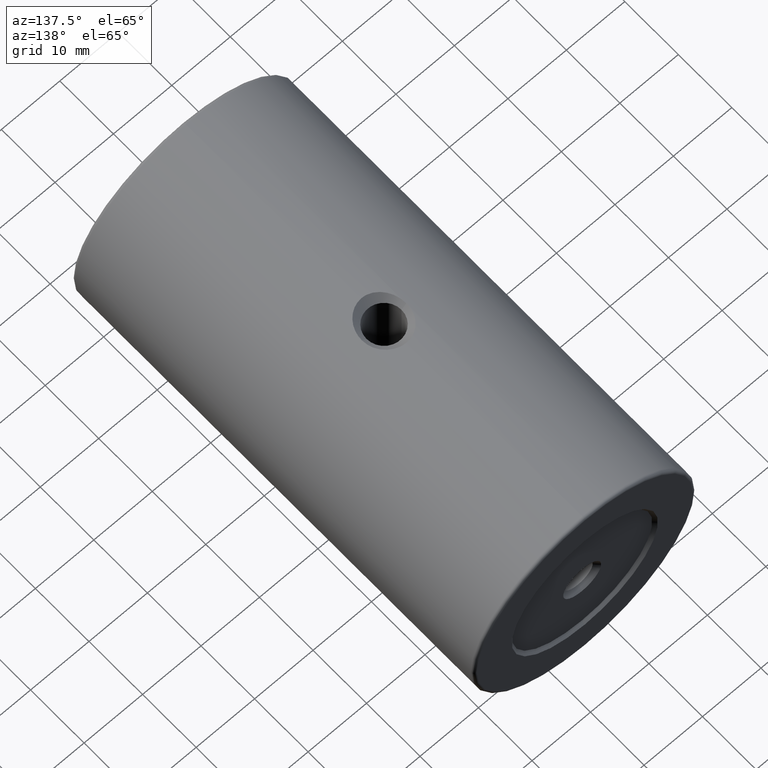
[diagram: clean part render]
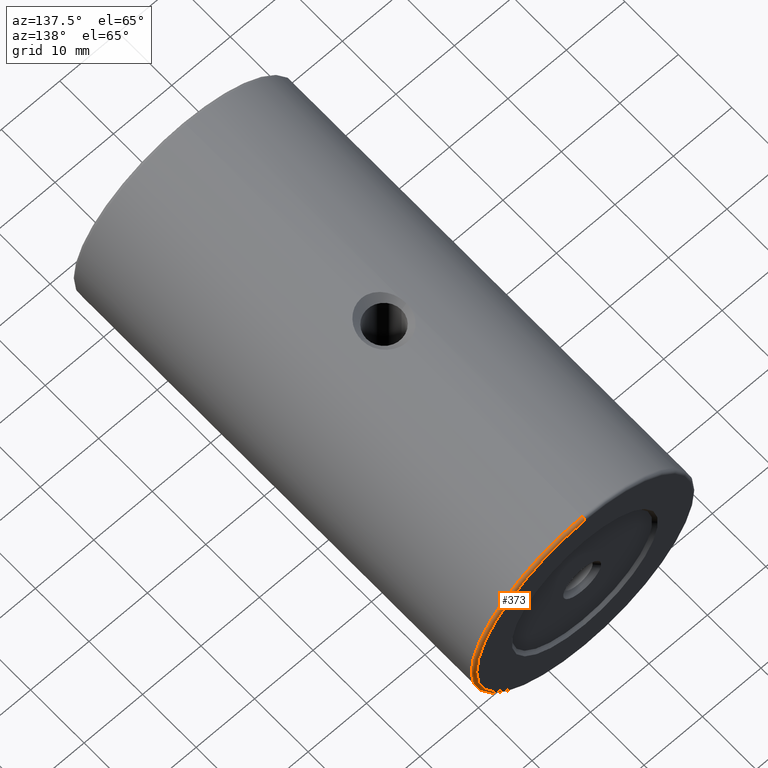
[diagram: same view with one face highlighted and labeled with its STEP entity id]
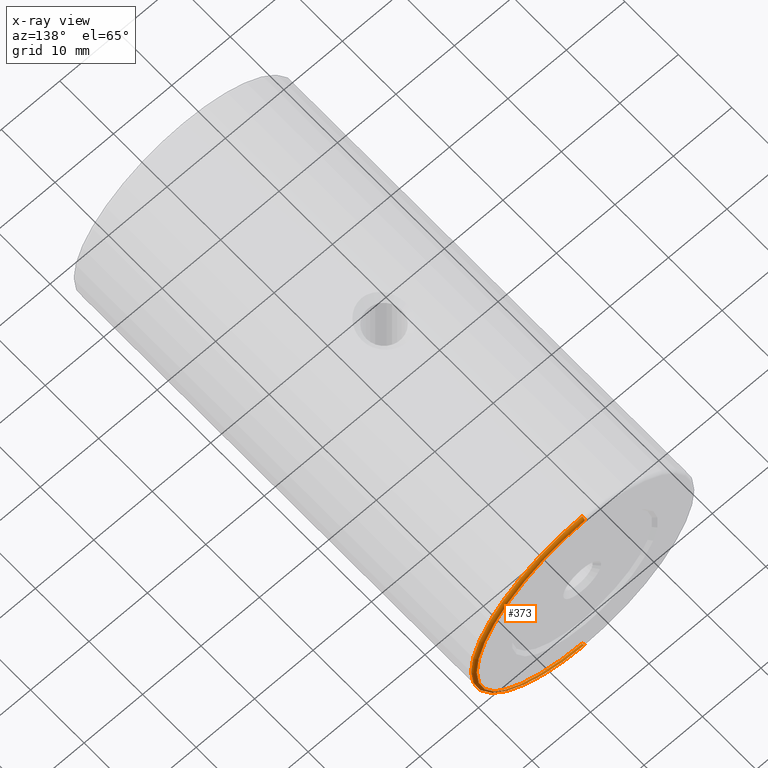
[diagram: x-ray of the same camera — body ghosted, the highlighted face saturated]
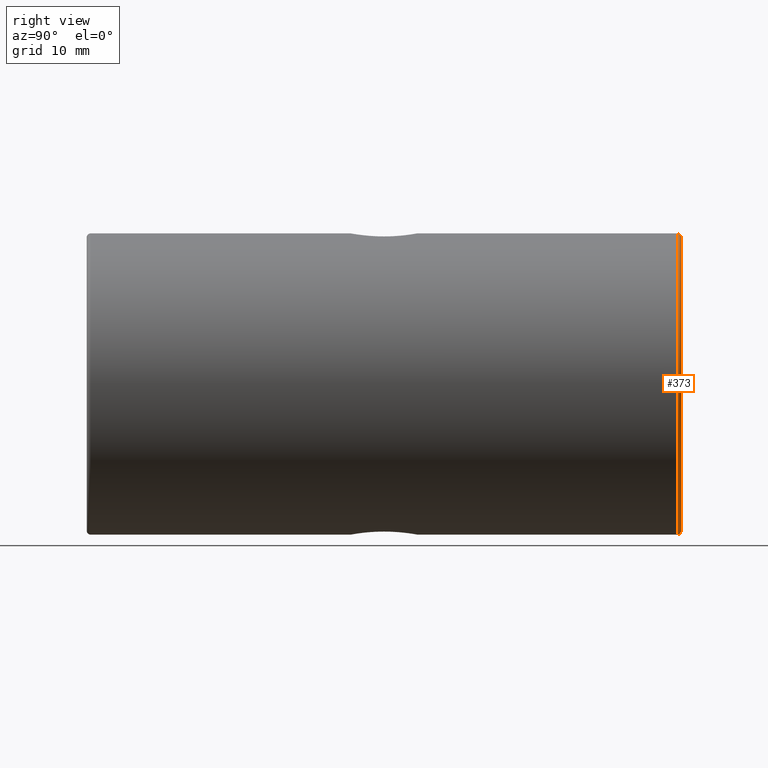
[diagram: same view with one face highlighted and labeled with its STEP entity id]
A machine part, auxiliary view. The second image highlights one B-rep face of the part: STEP entity #373.
The next image is the same camera in x-ray: the body ghosted, the highlighted face saturated — about 0% of this face is hidden behind the body in this view.
A second angle (right view) of the same face is appended — the face is thin or edge-on in the first view.
In plain terms, the highlighted toroidal blend (fillet) surface has major radius 18.5 mm and minor (blend) radius 0.5 mm.
Its self-contained STEP definition (entity closure, byte-faithful):
#5 = AXIS2_PLACEMENT_3D ( 'NONE', #918, #829, #670 ) ;
#17 = FACE_OUTER_BOUND ( 'NONE', #648, .T. ) ;
#63 = CARTESIAN_POINT ( 'NONE',  ( -85.22679983354142053, 33.23866000832571643, 418.5000000000000568 ) ) ;
#71 = CIRCLE ( 'NONE', #878, 19.00000000000001776 ) ;
#78 = DIRECTION ( 'NONE',  ( 0.0000000000000000000, 0.0000000000000000000, 1.000000000000000000 ) ) ;
#90 = DIRECTION ( 'NONE',  ( 0.0000000000000000000, 0.0000000000000000000, 1.000000000000000000 ) ) ;
#154 = VERTEX_POINT ( 'NONE', #443 ) ;
#176 = DIRECTION ( 'NONE',  ( 0.0000000000000000000, 1.000000000000000000, 0.0000000000000000000 ) ) ;
#206 = TOROIDAL_SURFACE ( 'NONE', #470, 18.50000000000000000, 0.5000000000000000000 ) ;
#230 = EDGE_CURVE ( 'NONE', #452, #154, #71, .T. ) ;
#233 = CIRCLE ( 'NONE', #5, 0.5000000000000004441 ) ;
#236 = CARTESIAN_POINT ( 'NONE',  ( -85.22679983354142053, 33.23866000832571643, 400.0000000000000000 ) ) ;
#245 = CIRCLE ( 'NONE', #566, 0.5000000000000004441 ) ;
#265 = EDGE_CURVE ( 'NONE', #775, #464, #518, .T. ) ;
#280 = DIRECTION ( 'NONE',  ( -1.000000000000000000, 0.0000000000000000000, 0.0000000000000000000 ) ) ;
#292 = CARTESIAN_POINT ( 'NONE',  ( -85.22679983354142053, 33.23866000832571643, 381.5000000000000000 ) ) ;
#350 = ORIENTED_EDGE ( 'NONE', *, *, #230, .F. ) ;
#373 = ADVANCED_FACE ( 'NONE', ( #17 ), #206, .T. ) ;
#398 = ORIENTED_EDGE ( 'NONE', *, *, #265, .F. ) ;
#400 = CARTESIAN_POINT ( 'NONE',  ( -85.22679983354142053, 32.73866000832571643, 400.0000000000000000 ) ) ;
#443 = CARTESIAN_POINT ( 'NONE',  ( -85.22679983354142053, 32.73866000832571643, 419.0000000000000568 ) ) ;
#452 = VERTEX_POINT ( 'NONE', #687 ) ;
#464 = VERTEX_POINT ( 'NONE', #292 ) ;
#470 = AXIS2_PLACEMENT_3D ( 'NONE', #889, #176, #90 ) ;
#488 = AXIS2_PLACEMENT_3D ( 'NONE', #236, #945, #548 ) ;
#493 = CARTESIAN_POINT ( 'NONE',  ( -85.22679983354142053, 32.73866000832571643, 418.5000000000000568 ) ) ;
#518 = CIRCLE ( 'NONE', #488, 18.50000000000001776 ) ;
#520 = EDGE_CURVE ( 'NONE', #452, #464, #233, .T. ) ;
#548 = DIRECTION ( 'NONE',  ( 0.0000000000000000000, 0.0000000000000000000, 1.000000000000000000 ) ) ;
#566 = AXIS2_PLACEMENT_3D ( 'NONE', #493, #280, #971 ) ;
#648 = EDGE_LOOP ( 'NONE', ( #350, #1001, #398, #843 ) ) ;
#670 = DIRECTION ( 'NONE',  ( 0.0000000000000000000, 0.0000000000000000000, -1.000000000000000000 ) ) ;
#687 = CARTESIAN_POINT ( 'NONE',  ( -85.22679983354142053, 32.73866000832571643, 381.0000000000000000 ) ) ;
#704 = DIRECTION ( 'NONE',  ( -0.0000000000000000000, -1.000000000000000000, -0.0000000000000000000 ) ) ;
#775 = VERTEX_POINT ( 'NONE', #63 ) ;
#829 = DIRECTION ( 'NONE',  ( 1.000000000000000000, -0.0000000000000000000, 1.224646799147353207E-16 ) ) ;
#843 = ORIENTED_EDGE ( 'NONE', *, *, #868, .F. ) ;
#868 = EDGE_CURVE ( 'NONE', #154, #775, #245, .T. ) ;
#878 = AXIS2_PLACEMENT_3D ( 'NONE', #400, #704, #78 ) ;
#889 = CARTESIAN_POINT ( 'NONE',  ( -85.22679983354142053, 32.73866000832571643, 400.0000000000000000 ) ) ;
#918 = CARTESIAN_POINT ( 'NONE',  ( -85.22679983354142053, 32.73866000832571643, 381.5000000000000000 ) ) ;
#945 = DIRECTION ( 'NONE',  ( 0.0000000000000000000, 1.000000000000000000, 0.0000000000000000000 ) ) ;
#971 = DIRECTION ( 'NONE',  ( 0.0000000000000000000, 0.0000000000000000000, 1.000000000000000000 ) ) ;
#1001 = ORIENTED_EDGE ( 'NONE', *, *, #520, .T. ) ;